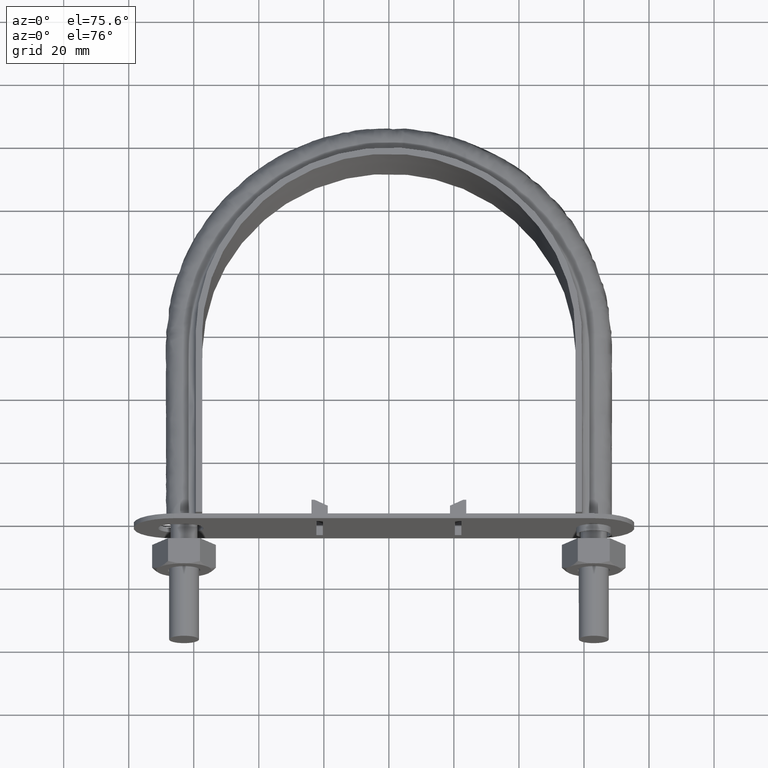
[diagram: clean part render]
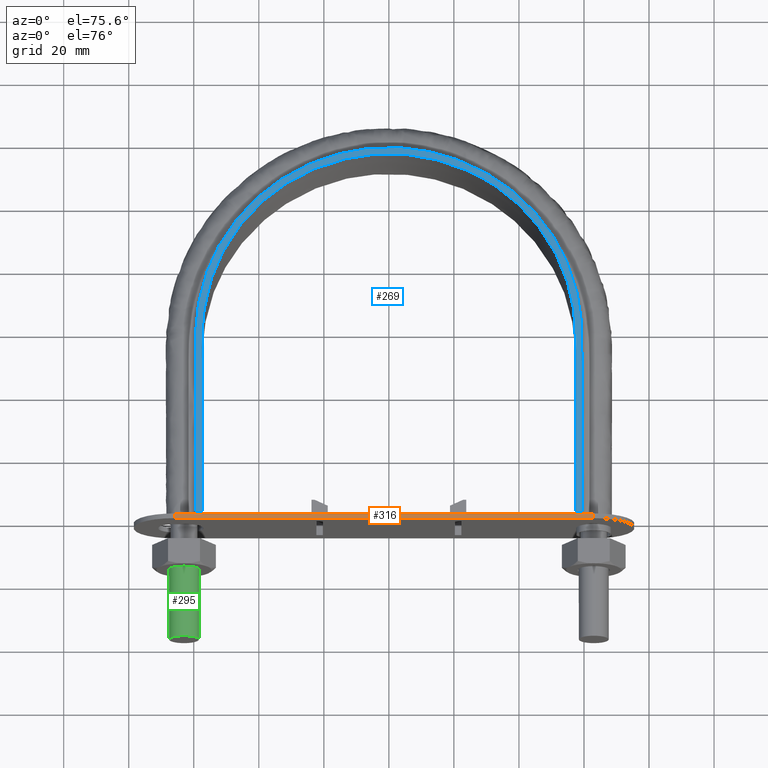
[diagram: same view with three faces highlighted in distinct colors, each labeled with its STEP entity id]
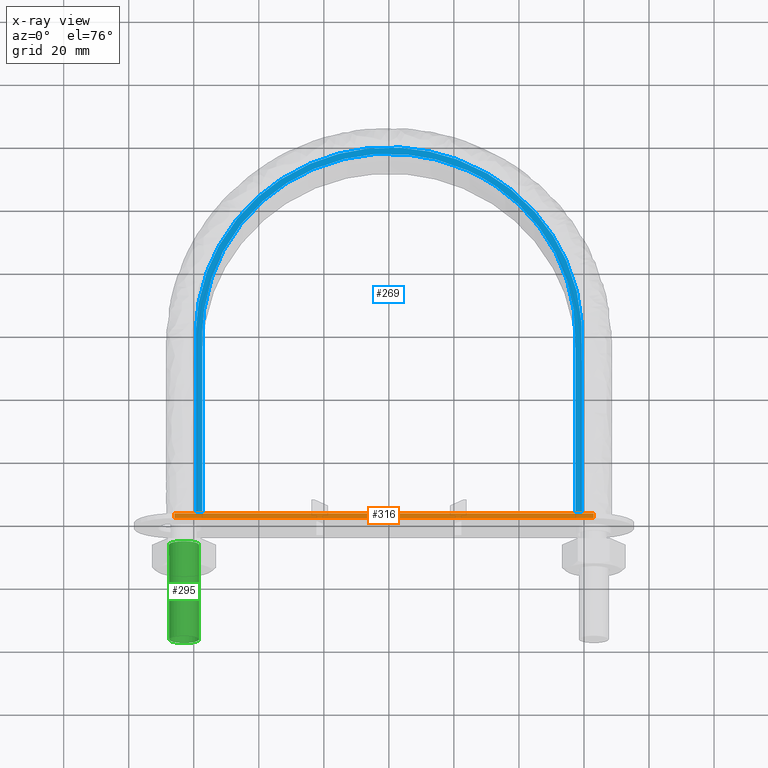
[diagram: x-ray of the same camera — body ghosted, the three highlighted faces saturated]
A machine part, auxiliary view with three faces highlighted in distinct colors.
The next image is the same camera in x-ray (body ghosted, the three faces saturated) — at least one of them is partly hidden behind the body in this view.
Their STEP definitions:

[orange] entity #316 — the highlighted planar face has unit normal (-0, -0, 1).
#316 = ADVANCED_FACE( '', ( #487 ), #488, .T. );
#487 = FACE_OUTER_BOUND( '', #1390, .T. );
#488 = PLANE( '', #1391 );
#1390 = EDGE_LOOP( '', ( #1873, #1874, #1875, #1876 ) );
#1391 = AXIS2_PLACEMENT_3D( '', #1877, #1878, #1879 );
#1873 = ORIENTED_EDGE( '', *, *, #2378, .F. );
#1874 = ORIENTED_EDGE( '', *, *, #2427, .F. );
#1875 = ORIENTED_EDGE( '', *, *, #2442, .T. );
#1876 = ORIENTED_EDGE( '', *, *, #2440, .T. );
#1877 = CARTESIAN_POINT( '', ( -65.9999999998741, 35.3000000000000, 12.5000000006649 ) );
#1878 = DIRECTION( '', ( -5.38700090211948E-027, -5.34725462008566E-016, 1.00000000000000 ) );
#1879 = DIRECTION( '', ( 1.00000000000000, -1.00743302589043E-011, 7.17464813734306E-043 ) );
#2378 = EDGE_CURVE( '', #2638, #2640, #2641, .T. );
#2427 = EDGE_CURVE( '', #2725, #2638, #2727, .T. );
#2440 = EDGE_CURVE( '', #2748, #2640, #2749, .T. );
#2442 = EDGE_CURVE( '', #2725, #2748, #2751, .F. );
#2638 = VERTEX_POINT( '', #3262 );
#2640 = VERTEX_POINT( '', #3264 );
#2641 = LINE( '', #3265, #3266 );
#2725 = VERTEX_POINT( '', #3393 );
#2727 = LINE( '', #3395, #3396 );
#2748 = VERTEX_POINT( '', #3429 );
#2749 = LINE( '', #3430, #3431 );
#2751 = LINE( '', #3433, #3434 );
#3262 = CARTESIAN_POINT( '', ( -65.9999999999371, 36.8000000000000, 12.5000000006649 ) );
#3264 = CARTESIAN_POINT( '', ( 63.0000000000629, 36.8000000000000, 12.5000000000151 ) );
#3265 = CARTESIAN_POINT( '', ( -66.0000000000000, 36.8000000000000, 12.5000000006649 ) );
#3266 = VECTOR( '', #3866, 1000.00000000000 );
#3393 = CARTESIAN_POINT( '', ( -65.9999999999371, 35.3000000000000, 12.5000000006649 ) );
#3395 = CARTESIAN_POINT( '', ( -65.9999999998741, 35.3000000000000, 12.5000000006649 ) );
#3396 = VECTOR( '', #3925, 1000.00000000000 );
#3429 = CARTESIAN_POINT( '', ( 63.0000000000629, 35.3000000000000, 12.5000000000151 ) );
#3430 = CARTESIAN_POINT( '', ( 63.0000000001259, 35.3000000000000, 12.4999999993653 ) );
#3431 = VECTOR( '', #3938, 1000.00000000000 );
#3433 = CARTESIAN_POINT( '', ( -65.9999999998741, 35.3000000000000, 12.5000000006649 ) );
#3434 = VECTOR( '', #3942, 1000.00000000000 );
#3866 = DIRECTION( '', ( 1.00000000000000, -1.34262804938052E-033, 5.38700090211948E-027 ) );
#3925 = DIRECTION( '', ( 2.51087312473002E-018, 1.00000000000000, 5.34725563500670E-016 ) );
#3938 = DIRECTION( '', ( 2.51087312473002E-018, 1.00000000000000, 5.34725563500670E-016 ) );
#3942 = DIRECTION( '', ( -1.00000000000000, 1.34262804938052E-033, -5.38700090211948E-027 ) );

[blue] entity #269 — the highlighted planar face has unit normal (0, 0, 1).
#269 = ADVANCED_FACE( '', ( #382 ), #383, .T. );
#382 = FACE_OUTER_BOUND( '', #631, .T. );
#383 = PLANE( '', #632 );
#631 = EDGE_LOOP( '', ( #1557, #1558, #1559, #1560 ) );
#632 = AXIS2_PLACEMENT_3D( '', #1561, #1562, #1563 );
#1557 = ORIENTED_EDGE( '', *, *, #2332, .T. );
#1558 = ORIENTED_EDGE( '', *, *, #2337, .F. );
#1559 = ORIENTED_EDGE( '', *, *, #2338, .T. );
#1560 = ORIENTED_EDGE( '', *, *, #2339, .F. );
#1561 = CARTESIAN_POINT( '', ( 75.0000000000000, 167.300000000000, 12.5000000000000 ) );
#1562 = DIRECTION( '', ( 0.000000000000000, 0.000000000000000, 1.00000000000000 ) );
#1563 = DIRECTION( '', ( 1.00000000000000, 0.000000000000000, 0.000000000000000 ) );
#2332 = EDGE_CURVE( '', #2566, #2563, #2567, .F. );
#2337 = EDGE_CURVE( '', #2573, #2563, #2575, .T. );
#2338 = EDGE_CURVE( '', #2573, #2576, #2577, .F. );
#2339 = EDGE_CURVE( '', #2566, #2576, #2578, .T. );
#2563 = VERTEX_POINT( '', #2947 );
#2566 = VERTEX_POINT( '', #2951 );
#2567 = LINE( '', #2952, #2953 );
#2573 = VERTEX_POINT( '', #3005 );
#2575 = B_SPLINE_CURVE_WITH_KNOTS( '', 3, ( #3008, #3009, #3010, #3011, #3012, #3013, #3014, #3015, #3016, #3017, #3018, #3019, #3020, #3021, #3022, #3023, #3024, #3025, #3026, #3027, #3028, #3029, #3030, #3031, #3032, #3033, #3034, #3035, #3036, #3037, #3038, #3039, #3040, #3041, #3042, #3043, #3044, #3045, #3046, #3047, #3048, #3049, #3050, #3051, #3052, #3053, #3054, #3055, #3056, #3057, #3058, #3059, #3060, #3061, #3062, #3063, #3064, #3065, #3066, #3067, #3068, #3069, #3070, #3071, #3072, #3073, #3074, #3075, #3076, #3077, #3078, #3079, #3080, #3081, #3082, #3083, #3084, #3085, #3086, #3087, #3088, #3089, #3090, #3091, #3092, #3093, #3094, #3095 ), .UNSPECIFIED., .F., .F., ( 4, 1, 2, 2, 2, 2, 2, 2, 2, 2, 2, 2, 2, 2, 2, 2, 2, 2, 2, 2, 2, 2, 2, 2, 2, 2, 2, 2, 2, 2, 2, 2, 2, 2, 2, 2, 2, 2, 2, 2, 2, 2, 2, 1, 4 ), ( 0.000000000000000, 0.0368006591004074, 0.0552009886506111, 0.0575010298443865, 0.0598010710381620, 0.0644011534257129, 0.0736013182008146, 0.0782014005883655, 0.0805014417821410, 0.0828014829759164, 0.0920016477510183, 0.0966017301385692, 0.0989017713323447, 0.101201812526120, 0.110401977301222, 0.115002059688773, 0.117302100882548, 0.119602142076324, 0.128802306851425, 0.133402389238976, 0.135702430432752, 0.138002471626527, 0.147202636401629, 0.156402801176730, 0.158702842370506, 0.161002883564281, 0.165602965951832, 0.174803130726934, 0.177103171920709, 0.179403213114485, 0.184003295502035, 0.193203460277137, 0.195503501470912, 0.197803542664688, 0.202403625052239, 0.211603789827340, 0.213903831021116, 0.216203872214891, 0.220803954602442, 0.230004119377544, 0.234604201765095, 0.236904242958870, 0.239204284152646, 0.257604613702849, 0.294405272803255 ), .UNSPECIFIED. );
#2576 = VERTEX_POINT( '', #3096 );
#2577 = LINE( '', #3097, #3098 );
#2578 = B_SPLINE_CURVE_WITH_KNOTS( '', 3, ( #3099, #3100, #3101, #3102, #3103, #3104, #3105, #3106, #3107, #3108, #3109, #3110, #3111, #3112, #3113, #3114 ), .UNSPECIFIED., .F., .F., ( 4, 3, 1, 1, 1, 1, 1, 1, 3, 4 ), ( 0.0630615640598999, 1.00000000000000, 2.00000000000000, 3.00000000000000, 4.00000000000000, 5.00000000000000, 6.00000000000000, 7.00000000000000, 8.00000000000000, 8.93693843594010 ), .UNSPECIFIED. );
#2947 = CARTESIAN_POINT( '', ( -57.4000000000000, 37.3000000000000, 12.5000000000000 ) );
#2951 = CARTESIAN_POINT( '', ( -59.4000000000000, 37.3000000000000, 12.5000000000000 ) );
#2952 = CARTESIAN_POINT( '', ( 75.0000000000000, 37.3000000000000, 12.5000000000000 ) );
#2953 = VECTOR( '', #3798, 1000.00000000000 );
#3005 = CARTESIAN_POINT( '', ( 57.4000000000000, 37.3000000000000, 12.5000000000000 ) );
#3008 = CARTESIAN_POINT( '', ( 57.4000000000000, 37.3000000000000, 12.5000000000000 ) );
#3009 = CARTESIAN_POINT( '', ( 57.4000000000000, 49.5668971504807, 12.5000000000000 ) );
#3010 = CARTESIAN_POINT( '', ( 57.4000000000000, 67.9672428762017, 12.5000000000000 ) );
#3011 = CARTESIAN_POINT( '', ( 57.4000000000000, 86.3675886019228, 12.5000000000000 ) );
#3012 = CARTESIAN_POINT( '', ( 57.4000000000000, 93.2677182490682, 12.5000000000000 ) );
#3013 = CARTESIAN_POINT( '', ( 57.4036066457801, 94.0344041032519, 12.5000000000000 ) );
#3014 = CARTESIAN_POINT( '', ( 57.3712056389476, 95.5677232845277, 12.5000000000000 ) );
#3015 = CARTESIAN_POINT( '', ( 57.3393359788148, 96.3353753045869, 12.5000000000000 ) );
#3016 = CARTESIAN_POINT( '', ( 57.1976234100831, 98.6306634699641, 12.5000000000000 ) );
#3017 = CARTESIAN_POINT( '', ( 57.0421967518527, 100.147180453960, 12.5000000000000 ) );
#3018 = CARTESIAN_POINT( '', ( 56.4004013757545, 104.657352705709, 12.5000000000000 ) );
#3019 = CARTESIAN_POINT( '', ( 55.7399883057786, 107.611959318388, 12.5000000000000 ) );
#3020 = CARTESIAN_POINT( '', ( 54.4013047063943, 111.965777471156, 12.5000000000000 ) );
#3021 = CARTESIAN_POINT( '', ( 53.8966972928596, 113.403952132018, 12.5000000000000 ) );
#3022 = CARTESIAN_POINT( '', ( 53.0487681131459, 115.540793277909, 12.5000000000000 ) );
#3023 = CARTESIAN_POINT( '', ( 52.7511260023257, 116.248939019185, 12.5000000000000 ) );
#3024 = CARTESIAN_POINT( '', ( 52.1306487491249, 117.645579267383, 12.5000000000000 ) );
#3025 = CARTESIAN_POINT( '', ( 51.8071932048134, 118.335643312284, 12.5000000000000 ) );
#3026 = CARTESIAN_POINT( '', ( 50.1243560027938, 121.745011154793, 12.5000000000000 ) );
#3027 = CARTESIAN_POINT( '', ( 48.5704537429598, 124.342805722192, 12.5000000000000 ) );
#3028 = CARTESIAN_POINT( '', ( 45.9378759805747, 128.051022440817, 12.5000000000000 ) );
#3029 = CARTESIAN_POINT( '', ( 45.0097482486540, 129.255485755391, 12.5000000000000 ) );
#3030 = CARTESIAN_POINT( '', ( 43.5399840512470, 131.013724230868, 12.5000000000000 ) );
#3031 = CARTESIAN_POINT( '', ( 43.0360401908088, 131.592882580464, 12.5000000000000 ) );
#3032 = CARTESIAN_POINT( '', ( 42.0071679355062, 132.728730541199, 12.5000000000000 ) );
#3033 = CARTESIAN_POINT( '', ( 41.4830799771195, 133.284602734684, 12.5000000000000 ) );
#3034 = CARTESIAN_POINT( '', ( 38.8150256208346, 136.004509636062, 12.5000000000000 ) );
#3035 = CARTESIAN_POINT( '', ( 36.5289375337689, 137.991083678086, 12.5000000000000 ) );
#3036 = CARTESIAN_POINT( '', ( 32.8725465474708, 140.687177301449, 12.5000000000000 ) );
#3037 = CARTESIAN_POINT( '', ( 31.6159998625507, 141.538738914915, 12.5000000000000 ) );
#3038 = CARTESIAN_POINT( '', ( 29.6741600235066, 142.744883379300, 12.5000000000000 ) );
#3039 = CARTESIAN_POINT( '', ( 29.0173621705767, 143.135046972002, 12.5000000000000 ) );
#3040 = CARTESIAN_POINT( '', ( 27.6844813094561, 143.891293691475, 12.5000000000000 ) );
#3041 = CARTESIAN_POINT( '', ( 27.0092860879621, 144.256786401143, 12.5000000000000 ) );
#3042 = CARTESIAN_POINT( '', ( 23.6148955512581, 146.008321558919, 12.5000000000000 ) );
#3043 = CARTESIAN_POINT( '', ( 20.8188839208598, 147.181221130253, 12.5000000000000 ) );
#3044 = CARTESIAN_POINT( '', ( 16.5063575914379, 148.604430974849, 12.5000000000000 ) );
#3045 = CARTESIAN_POINT( '', ( 15.0489724833802, 149.022456876127, 12.5000000000000 ) );
#3046 = CARTESIAN_POINT( '', ( 12.8322199583377, 149.562489310090, 12.5000000000000 ) );
#3047 = CARTESIAN_POINT( '', ( 12.0881682606315, 149.727937467103, 12.5000000000000 ) );
#3048 = CARTESIAN_POINT( '', ( 10.5896803128534, 150.029378956679, 12.5000000000000 ) );
#3049 = CARTESIAN_POINT( '', ( 9.83354107507645, 150.165648447286, 12.5000000000000 ) );
#3050 = CARTESIAN_POINT( '', ( 6.05033946504669, 150.768951449387, 12.5000000000000 ) );
#3051 = CARTESIAN_POINT( '', ( 3.02331961872749, 151.004107282322, 12.5000000000000 ) );
#3052 = CARTESIAN_POINT( '', ( -3.03159229771707, 151.003674706656, 12.5000000000000 ) );
#3053 = CARTESIAN_POINT( '', ( -6.05948435362845, 150.768093969407, 12.5000000000000 ) );
#3054 = CARTESIAN_POINT( '', ( -9.84492369258704, 150.163681704027, 12.5000000000000 ) );
#3055 = CARTESIAN_POINT( '', ( -10.6002721762767, 150.027389123450, 12.5000000000000 ) );
#3056 = CARTESIAN_POINT( '', ( -12.0978185021847, 149.725853405145, 12.5000000000000 ) );
#3057 = CARTESIAN_POINT( '', ( -12.8414452252183, 149.560367013091, 12.5000000000000 ) );
#3058 = CARTESIAN_POINT( '', ( -15.0570550081488, 149.020235378931, 12.5000000000000 ) );
#3059 = CARTESIAN_POINT( '', ( -16.5138535706966, 148.602163316093, 12.5000000000000 ) );
#3060 = CARTESIAN_POINT( '', ( -20.8250913381979, 147.178758755140, 12.5000000000000 ) );
#3061 = CARTESIAN_POINT( '', ( -23.6208691240754, 146.005657850112, 12.5000000000000 ) );
#3062 = CARTESIAN_POINT( '', ( -27.0156329102763, 144.253406103617, 12.5000000000000 ) );
#3063 = CARTESIAN_POINT( '', ( -27.6910147520962, 143.887696886022, 12.5000000000000 ) );
#3064 = CARTESIAN_POINT( '', ( -29.0234575114926, 143.131477440111, 12.5000000000000 ) );
#3065 = CARTESIAN_POINT( '', ( -29.6800585802789, 142.741324040592, 12.5000000000000 ) );
#3066 = CARTESIAN_POINT( '', ( -31.6213689725300, 141.535193660409, 12.5000000000000 ) );
#3067 = CARTESIAN_POINT( '', ( -32.8776437603807, 140.683619457022, 12.5000000000000 ) );
#3068 = CARTESIAN_POINT( '', ( -36.5334220827475, 137.987374398228, 12.5000000000000 ) );
#3069 = CARTESIAN_POINT( '', ( -38.8193751731556, 136.000549631674, 12.5000000000000 ) );
#3070 = CARTESIAN_POINT( '', ( -41.4874843976752, 133.279993585617, 12.5000000000000 ) );
#3071 = CARTESIAN_POINT( '', ( -42.0115944312470, 132.723974530571, 12.5000000000000 ) );
#3072 = CARTESIAN_POINT( '', ( -43.0405299781914, 131.587794110931, 12.5000000000000 ) );
#3073 = CARTESIAN_POINT( '', ( -43.5442393747026, 131.008765306377, 12.5000000000000 ) );
#3074 = CARTESIAN_POINT( '', ( -45.0135877457228, 129.250627800788, 12.5000000000000 ) );
#3075 = CARTESIAN_POINT( '', ( -45.9415210243653, 128.046162448528, 12.5000000000000 ) );
#3076 = CARTESIAN_POINT( '', ( -48.5736917716305, 124.337694282144, 12.5000000000000 ) );
#3077 = CARTESIAN_POINT( '', ( -50.1275589688898, 121.739408642437, 12.5000000000000 ) );
#3078 = CARTESIAN_POINT( '', ( -51.8104283189418, 118.328866111214, 12.5000000000000 ) );
#3079 = CARTESIAN_POINT( '', ( -52.1338941649286, 117.638538815899, 12.5000000000000 ) );
#3080 = CARTESIAN_POINT( '', ( -52.7543954652597, 116.241312252746, 12.5000000000000 ) );
#3081 = CARTESIAN_POINT( '', ( -53.0520667494113, 115.532782600104, 12.5000000000000 ) );
#3082 = CARTESIAN_POINT( '', ( -53.8993605656225, 113.396631283103, 12.5000000000000 ) );
#3083 = CARTESIAN_POINT( '', ( -54.4036525659498, 111.958777453083, 12.5000000000000 ) );
#3084 = CARTESIAN_POINT( '', ( -55.7415838846628, 107.605493588584, 12.5000000000000 ) );
#3085 = CARTESIAN_POINT( '', ( -56.4017548199478, 104.650676383386, 12.5000000000000 ) );
#3086 = CARTESIAN_POINT( '', ( -57.0431251208450, 100.139233624254, 12.5000000000000 ) );
#3087 = CARTESIAN_POINT( '', ( -57.1984001624354, 98.6221331309985, 12.5000000000000 ) );
#3088 = CARTESIAN_POINT( '', ( -57.3398068241163, 96.3257053568890, 12.5000000000000 ) );
#3089 = CARTESIAN_POINT( '', ( -57.3715266179354, 95.5584033825670, 12.5000000000000 ) );
#3090 = CARTESIAN_POINT( '', ( -57.4036727794919, 94.0253337577368, 12.5000000000000 ) );
#3091 = CARTESIAN_POINT( '', ( -57.4000000000000, 93.2587698558454, 12.5000000000000 ) );
#3092 = CARTESIAN_POINT( '', ( -57.4000000000000, 86.3597434352616, 12.5000000000000 ) );
#3093 = CARTESIAN_POINT( '', ( -57.4000000000000, 67.9623396470386, 12.5000000000000 ) );
#3094 = CARTESIAN_POINT( '', ( -57.4000000000000, 49.5649358588154, 12.5000000000000 ) );
#3095 = CARTESIAN_POINT( '', ( -57.4000000000000, 37.2999999999999, 12.5000000000000 ) );
#3096 = CARTESIAN_POINT( '', ( 59.4000000000000, 37.3000000000000, 12.5000000000000 ) );
#3097 = CARTESIAN_POINT( '', ( 75.0000000000000, 37.3000000000000, 12.5000000000000 ) );
#3098 = VECTOR( '', #3801, 1000.00000000000 );
#3099 = CARTESIAN_POINT( '', ( -59.4000000000000, 37.3000000000000, 12.5000000000000 ) );
#3100 = CARTESIAN_POINT( '', ( -59.4000000000000, 56.0700000000001, 12.5000000000000 ) );
#3101 = CARTESIAN_POINT( '', ( -59.4000000000000, 74.8400000000000, 12.5000000000000 ) );
#3102 = CARTESIAN_POINT( '', ( -59.4000000000000, 93.6100000000000, 12.5000000000000 ) );
#3103 = CARTESIAN_POINT( '', ( -59.4000000000000, 102.484817836499, 12.5000000000000 ) );
#3104 = CARTESIAN_POINT( '', ( -55.3444933644878, 120.266836188810, 12.5000000000000 ) );
#3105 = CARTESIAN_POINT( '', ( -38.2995777447149, 141.635011205915, 12.5000000000000 ) );
#3106 = CARTESIAN_POINT( '', ( -13.6689610391051, 153.497859339137, 12.5000000000000 ) );
#3107 = CARTESIAN_POINT( '', ( 13.6689610391052, 153.497859339137, 12.5000000000000 ) );
#3108 = CARTESIAN_POINT( '', ( 38.2995777447150, 141.635011205915, 12.5000000000000 ) );
#3109 = CARTESIAN_POINT( '', ( 55.3444933644878, 120.266836188810, 12.5000000000000 ) );
#3110 = CARTESIAN_POINT( '', ( 59.4000000000000, 102.484817836499, 12.5000000000000 ) );
#3111 = CARTESIAN_POINT( '', ( 59.4000000000000, 93.6100000000000, 12.5000000000000 ) );
#3112 = CARTESIAN_POINT( '', ( 59.4000000000000, 74.8399999999999, 12.5000000000000 ) );
#3113 = CARTESIAN_POINT( '', ( 59.4000000000000, 56.0700000000000, 12.5000000000000 ) );
#3114 = CARTESIAN_POINT( '', ( 59.4000000000000, 37.3000000000000, 12.5000000000000 ) );
#3798 = DIRECTION( '', ( -1.00000000000000, 1.83649404852125E-048, 0.000000000000000 ) );
#3801 = DIRECTION( '', ( -1.00000000000000, 1.83649404852125E-048, 0.000000000000000 ) );

[green] entity #295 — the highlighted cylindrical surface (bore or boss wall) has radius 4.6 mm, axis along (-0, -1, -0).
#295 = ADVANCED_FACE( '', ( #440, #441 ), #442, .T. );
#440 = FACE_OUTER_BOUND( '', #1343, .T. );
#441 = FACE_OUTER_BOUND( '', #1344, .T. );
#442 = CYLINDRICAL_SURFACE( '', #1345, 4.60000000000000 );
#1343 = EDGE_LOOP( '', ( #1711 ) );
#1344 = EDGE_LOOP( '', ( #1712 ) );
#1345 = AXIS2_PLACEMENT_3D( '', #1713, #1714, #1715 );
#1711 = ORIENTED_EDGE( '', *, *, #2375, .T. );
#1712 = ORIENTED_EDGE( '', *, *, #2376, .T. );
#1713 = CARTESIAN_POINT( '', ( -63.0000000000000, 30.0000000000000, 1.92814270409333E-015 ) );
#1714 = DIRECTION( '', ( -2.44921270764475E-016, -1.00000000000000, -6.12303176911189E-017 ) );
#1715 = DIRECTION( '', ( 1.00000000000000, -2.44921270764475E-016, 2.44921270764475E-016 ) );
#2375 = EDGE_CURVE( '', #2633, #2633, #2634, .T. );
#2376 = EDGE_CURVE( '', #2635, #2635, #2636, .T. );
#2633 = VERTEX_POINT( '', #3257 );
#2634 = CIRCLE( '', #3258, 4.60000000000000 );
#2635 = VERTEX_POINT( '', #3259 );
#2636 = CIRCLE( '', #3260, 4.60000000000000 );
#3257 = CARTESIAN_POINT( '', ( -63.0000000000000, 7.71502002908098E-015, 4.60000000000000 ) );
#3258 = AXIS2_PLACEMENT_3D( '', #3857, #3858, #3859 );
#3259 = CARTESIAN_POINT( '', ( -58.4000000000000, 30.0000000000000, 3.05478054960992E-015 ) );
#3260 = AXIS2_PLACEMENT_3D( '', #3860, #3861, #3862 );
#3857 = CARTESIAN_POINT( '', ( -63.0000000000000, 7.71502002908098E-015, 9.12331733597671E-017 ) );
#3858 = DIRECTION( '', ( 1.22460635382238E-016, 1.00000000000000, 0.000000000000000 ) );
#3859 = DIRECTION( '', ( 0.000000000000000, 0.000000000000000, 1.00000000000000 ) );
#3860 = CARTESIAN_POINT( '', ( -63.0000000000000, 30.0000000000000, 1.92814270409333E-015 ) );
#3861 = DIRECTION( '', ( -2.44921270764475E-016, -1.00000000000000, -6.12303176911189E-017 ) );
#3862 = DIRECTION( '', ( 1.00000000000000, -2.44921270764475E-016, 2.44921270764475E-016 ) );